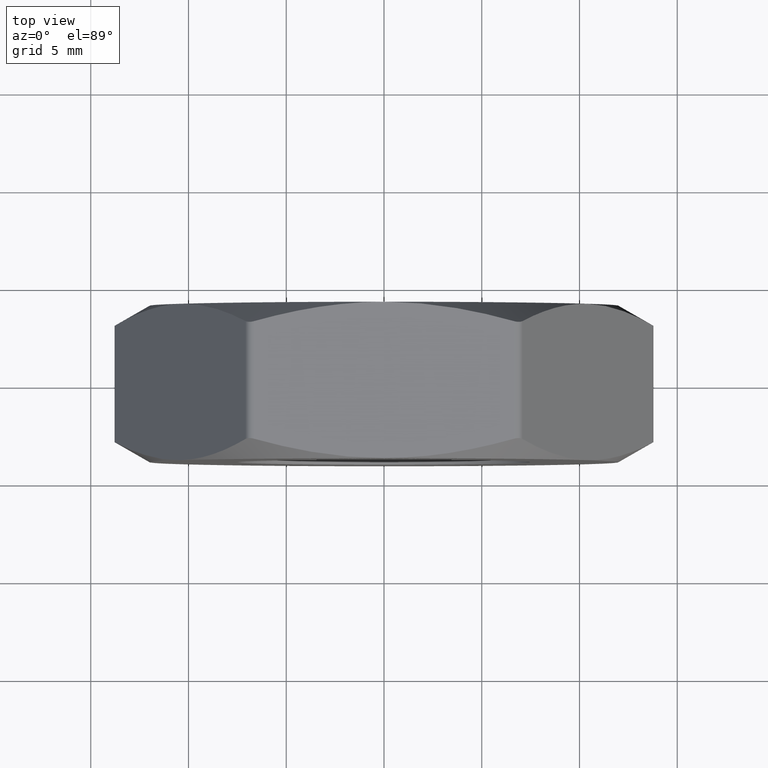
[diagram: clean part render]
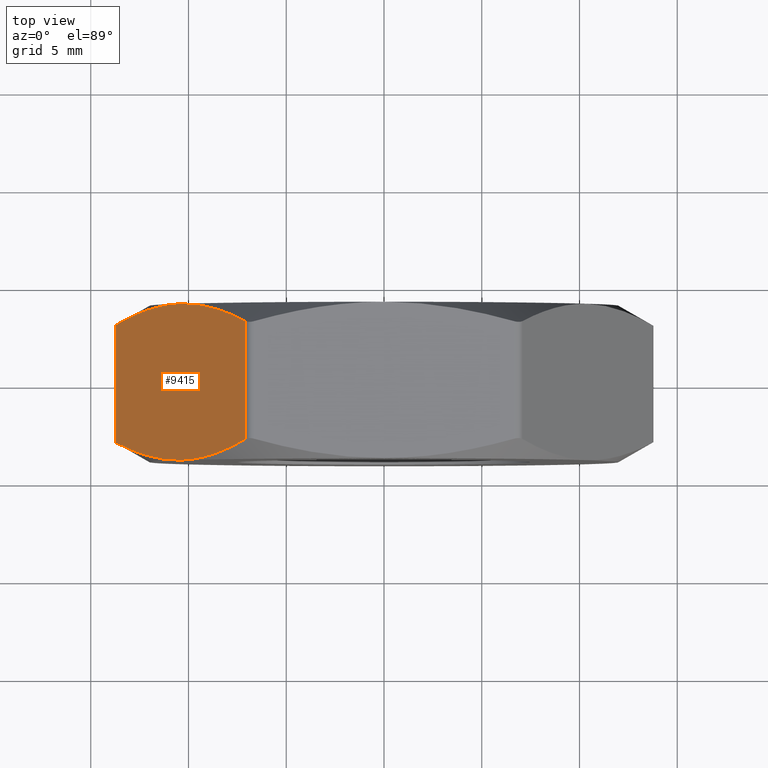
[diagram: same view with one face highlighted and labeled with its STEP entity id]
A machine part, top view. The second image highlights one B-rep face of the part: STEP entity #9415.
In plain terms, the highlighted planar face has unit normal (0.866, 0, -0.5).
Its self-contained STEP definition (entity closure, byte-faithful):
#188 = CARTESIAN_POINT ( 'NONE',  ( -10.39230484541326405, -4.000000000000000000, 6.000000000000001776 ) ) ;
#681 = CARTESIAN_POINT ( 'NONE',  ( -10.11082040635887402, -4.000000000000006217, 6.487545349982232423 ) ) ;
#741 = CARTESIAN_POINT ( 'NONE',  ( -8.161051184807725178, -3.562063013138926593, 9.864644704742836723 ) ) ;
#757 = B_SPLINE_CURVE_WITH_KNOTS ( 'NONE', 3,
 ( #13868, #9400, #3677, #14547, #8446, #188 ),
 .UNSPECIFIED., .F., .F.,
 ( 4, 2, 4 ),
 ( 0.0002976420579474632687, 0.003654043546377305426, 0.007010445034807148181 ),
 .UNSPECIFIED. ) ;
#818 = CARTESIAN_POINT ( 'NONE',  ( -13.17005630627476975, 3.313219605597454098, 1.188793338989213133 ) ) ;
#1522 = CARTESIAN_POINT ( 'NONE',  ( -9.268373994161448692, -3.886760395136418467, 7.946705338562275678 ) ) ;
#1719 = CARTESIAN_POINT ( 'NONE',  ( -10.39230484541326405, 4.000000000000000000, 6.000000000000001776 ) ) ;
#2114 = LINE ( 'NONE', #12379, #14421 ) ;
#2180 = CARTESIAN_POINT ( 'NONE',  ( -7.072540797572600013, 3.010220883462211727, 11.75000000000054534 ) ) ;
#2340 = VERTEX_POINT ( 'NONE', #15169 ) ;
#2977 = ORIENTED_EDGE ( 'NONE', *, *, #10282, .T. ) ;
#3141 = CARTESIAN_POINT ( 'NONE',  ( -7.614553384551761006, -3.313219605597453654, 10.81120666101079486 ) ) ;
#3677 = CARTESIAN_POINT ( 'NONE',  ( -12.62147978884749122, -3.562901251027050797, 2.138955739012447843 ) ) ;
#3910 = DIRECTION ( 'NONE',  ( -0.000000000000000000, 1.000000000000000000, -0.000000000000000000 ) ) ;
#4177 = CARTESIAN_POINT ( 'NONE',  ( -8.990347189129833438, -3.820028020092776977, 8.428261890743083740 ) ) ;
#4305 = CARTESIAN_POINT ( 'NONE',  ( -13.71206889325361189, 4.000000000000000000, 0.2500000000000037192 ) ) ;
#4548 = CARTESIAN_POINT ( 'NONE',  ( -12.62355850601880292, 3.562063013138928813, 2.135355295257169495 ) ) ;
#5210 = VECTOR ( 'NONE', #6779, 1000.000000000000000 ) ;
#5355 = ORIENTED_EDGE ( 'NONE', *, *, #7365, .T. ) ;
#5555 = CARTESIAN_POINT ( 'NONE',  ( -10.39230484541326405, -4.000000000000000000, 6.000000000000001776 ) ) ;
#5617 = CARTESIAN_POINT ( 'NONE',  ( -7.072540797572600013, 3.010220883462211727, 11.75000000000054534 ) ) ;
#5687 = CARTESIAN_POINT ( 'NONE',  ( -10.95658457648184481, 3.976788126677493374, 5.022638836107916838 ) ) ;
#5838 = CARTESIAN_POINT ( 'NONE',  ( -7.615867869546496749, 3.313954435900753115, 10.80892990621412864 ) ) ;
#6321 = DIRECTION ( 'NONE',  ( 0.8660254037844385966, 0.000000000000000000, -0.5000000000000001110 ) ) ;
#6779 = DIRECTION ( 'NONE',  ( 0.000000000000000000, -1.000000000000000000, 0.000000000000000000 ) ) ;
#6800 = VERTEX_POINT ( 'NONE', #14070 ) ;
#7365 = EDGE_CURVE ( 'NONE', #2340, #13196, #2114, .T. ) ;
#7619 = B_SPLINE_CURVE_WITH_KNOTS ( 'NONE', 3,
 ( #5555, #681, #9110, #1522, #4177, #741, #3141, #11477 ),
 .UNSPECIFIED., .F., .F.,
 ( 4, 2, 2, 4 ),
 ( 0.007010445034807148181, 0.008682192066603521344, 0.01035393909839989711, 0.01369743316199265037 ),
 .UNSPECIFIED. ) ;
#7772 = CARTESIAN_POINT ( 'NONE',  ( -13.71206889325361189, 3.010220883462388031, 0.2500000000000046629 ) ) ;
#7806 = VERTEX_POINT ( 'NONE', #8505 ) ;
#7810 = EDGE_LOOP ( 'NONE', ( #11050, #2977, #8442, #8590, #5355, #14598 ) ) ;
#7910 = VERTEX_POINT ( 'NONE', #7772 ) ;
#7979 = CARTESIAN_POINT ( 'NONE',  ( -10.67378928446765407, 4.000000000000007994, 5.512454650017772906 ) ) ;
#8130 = CARTESIAN_POINT ( 'NONE',  ( -13.71206889325361189, 3.010220883462388031, 0.2500000000000046629 ) ) ;
#8350 = EDGE_CURVE ( 'NONE', #7806, #6800, #757, .T. ) ;
#8442 = ORIENTED_EDGE ( 'NONE', *, *, #8350, .T. ) ;
#8446 = CARTESIAN_POINT ( 'NONE',  ( -10.95744704231418609, -4.000000000000007105, 5.021145001466511992 ) ) ;
#8505 = CARTESIAN_POINT ( 'NONE',  ( -13.71206889325392808, -3.010220883462210839, 0.2499999999994580169 ) ) ;
#8508 = DIRECTION ( 'NONE',  ( -0.5000000000000001110, 0.000000000000000000, -0.8660254037844385966 ) ) ;
#8590 = ORIENTED_EDGE ( 'NONE', *, *, #11489, .T. ) ;
#8611 = CARTESIAN_POINT ( 'NONE',  ( -13.85640646055101932, 4.000000000000000000, 3.498208672162293718E-15 ) ) ;
#9110 = CARTESIAN_POINT ( 'NONE',  ( -9.828025114344677959, -3.976788126677493374, 6.977361163892087603 ) ) ;
#9131 = CARTESIAN_POINT ( 'NONE',  ( -10.39230484541326405, 4.000000000000000000, 6.000000000000001776 ) ) ;
#9400 = CARTESIAN_POINT ( 'NONE',  ( -13.16874182128003135, -3.313954435900752671, 1.191070093785875583 ) ) ;
#9415 = ADVANCED_FACE ( 'NONE', ( #10872 ), #9817, .F. ) ;
#9817 = PLANE ( 'NONE',  #12012 ) ;
#10017 = B_SPLINE_CURVE_WITH_KNOTS ( 'NONE', 3,
 ( #2180, #5838, #14215, #15384, #10646, #13016 ),
 .UNSPECIFIED., .F., .F.,
 ( 4, 2, 4 ),
 ( 0.0002976420579474643529, 0.003654043546377305426, 0.007010445034807146446 ),
 .UNSPECIFIED. ) ;
#10224 = B_SPLINE_CURVE_WITH_KNOTS ( 'NONE', 3,
 ( #9131, #7979, #5687, #11785, #13958, #4548, #818, #8130 ),
 .UNSPECIFIED., .F., .F.,
 ( 4, 2, 2, 4 ),
 ( 0.007010445034807146446, 0.008682192066603521344, 0.01035393909839989537, 0.01369743316199264864 ),
 .UNSPECIFIED. ) ;
#10282 = EDGE_CURVE ( 'NONE', #7910, #7806, #10854, .T. ) ;
#10343 = EDGE_CURVE ( 'NONE', #13196, #11864, #10017, .T. ) ;
#10646 = CARTESIAN_POINT ( 'NONE',  ( -9.827162648512342003, 4.000000000000007105, 6.978854998533494225 ) ) ;
#10854 = LINE ( 'NONE', #4305, #5210 ) ;
#10872 = FACE_OUTER_BOUND ( 'NONE', #7810, .T. ) ;
#11050 = ORIENTED_EDGE ( 'NONE', *, *, #14653, .T. ) ;
#11477 = CARTESIAN_POINT ( 'NONE',  ( -7.072540797572915316, -3.010220883462386698, 11.75000000000000178 ) ) ;
#11489 = EDGE_CURVE ( 'NONE', #6800, #2340, #7619, .T. ) ;
#11785 = CARTESIAN_POINT ( 'NONE',  ( -11.51623569666506874, 3.886760395136416690, 4.053294661437727875 ) ) ;
#11864 = VERTEX_POINT ( 'NONE', #1719 ) ;
#12012 = AXIS2_PLACEMENT_3D ( 'NONE', #8611, #6321, #8508 ) ;
#12379 = CARTESIAN_POINT ( 'NONE',  ( -7.072540797572916205, 4.000000000000000000, 11.75000000000000000 ) ) ;
#13016 = CARTESIAN_POINT ( 'NONE',  ( -10.39230484541326405, 4.000000000000000000, 6.000000000000001776 ) ) ;
#13196 = VERTEX_POINT ( 'NONE', #5617 ) ;
#13868 = CARTESIAN_POINT ( 'NONE',  ( -13.71206889325392808, -3.010220883462210839, 0.2499999999994580169 ) ) ;
#13958 = CARTESIAN_POINT ( 'NONE',  ( -11.79426250169669643, 3.820028020092776977, 3.571738109256918925 ) ) ;
#14070 = CARTESIAN_POINT ( 'NONE',  ( -10.39230484541326405, -4.000000000000000000, 6.000000000000001776 ) ) ;
#14215 = CARTESIAN_POINT ( 'NONE',  ( -8.163129901979040426, 3.562901251027051241, 9.861044260987560151 ) ) ;
#14421 = VECTOR ( 'NONE', #3910, 1000.000000000000000 ) ;
#14547 = CARTESIAN_POINT ( 'NONE',  ( -11.51586903937518969, -3.906434174578377050, 4.053929730492762395 ) ) ;
#14598 = ORIENTED_EDGE ( 'NONE', *, *, #10343, .T. ) ;
#14653 = EDGE_CURVE ( 'NONE', #11864, #7910, #10224, .T. ) ;
#15169 = CARTESIAN_POINT ( 'NONE',  ( -7.072540797572915316, -3.010220883462386698, 11.75000000000000178 ) ) ;
#15384 = CARTESIAN_POINT ( 'NONE',  ( -9.268740651451333079, 3.906434174578377050, 7.946070269507243822 ) ) ;